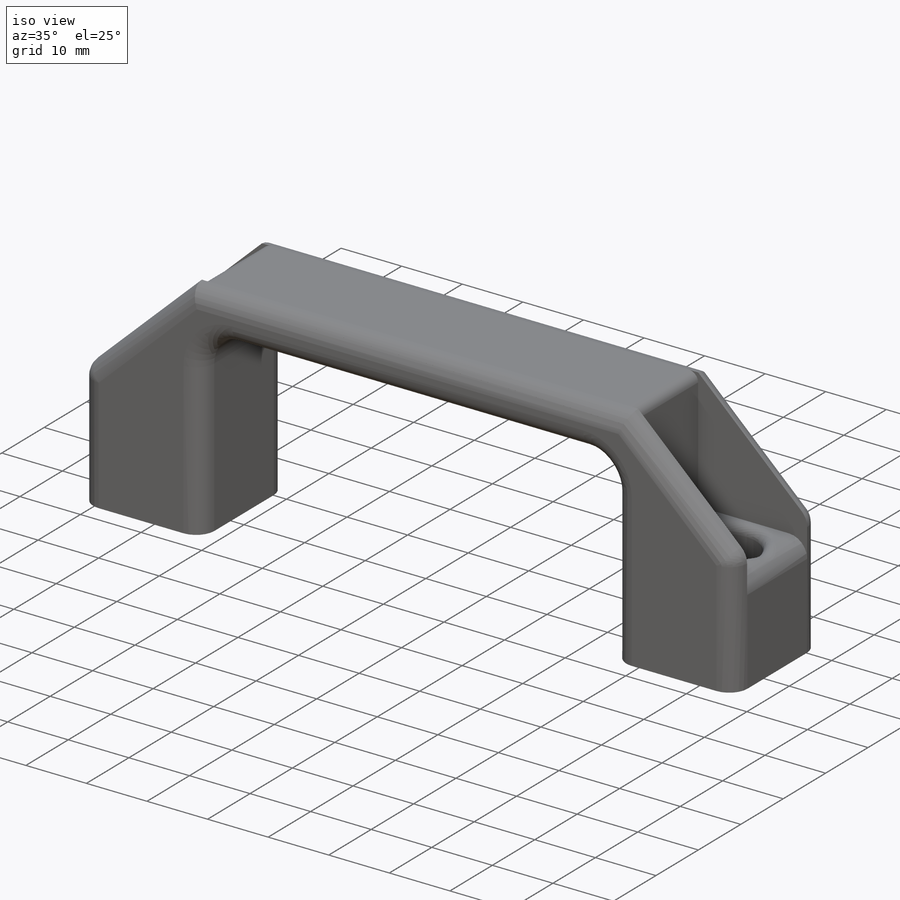
[diagram: iso view]
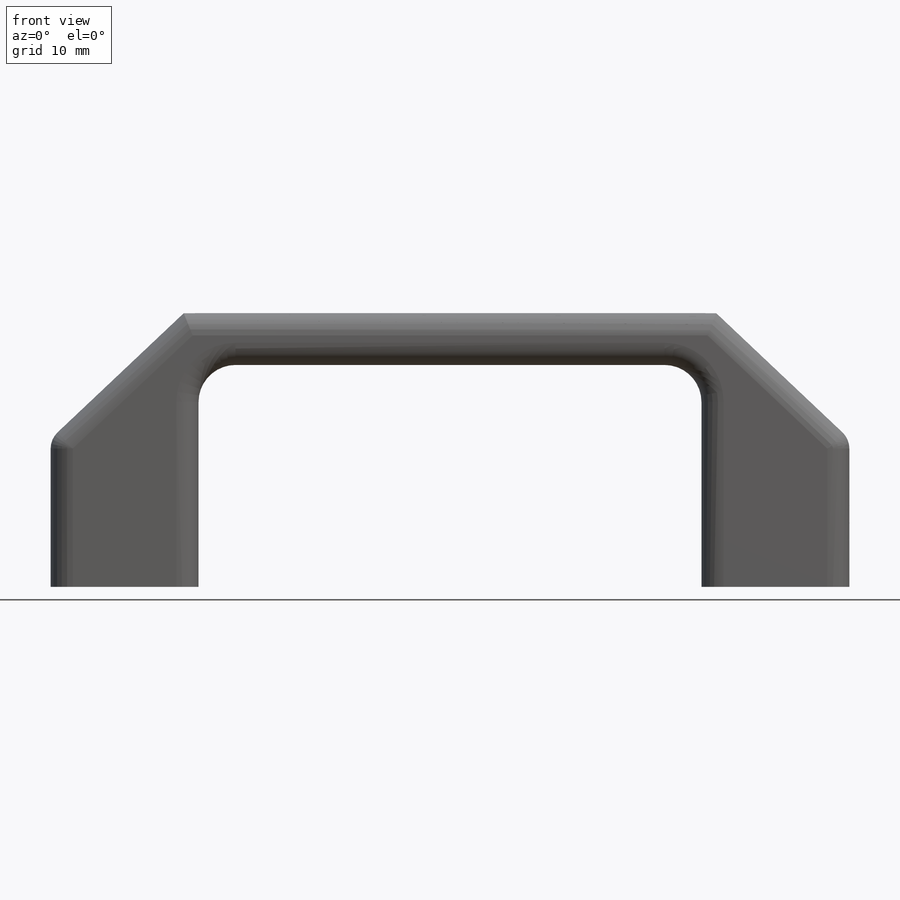
[diagram: front view]
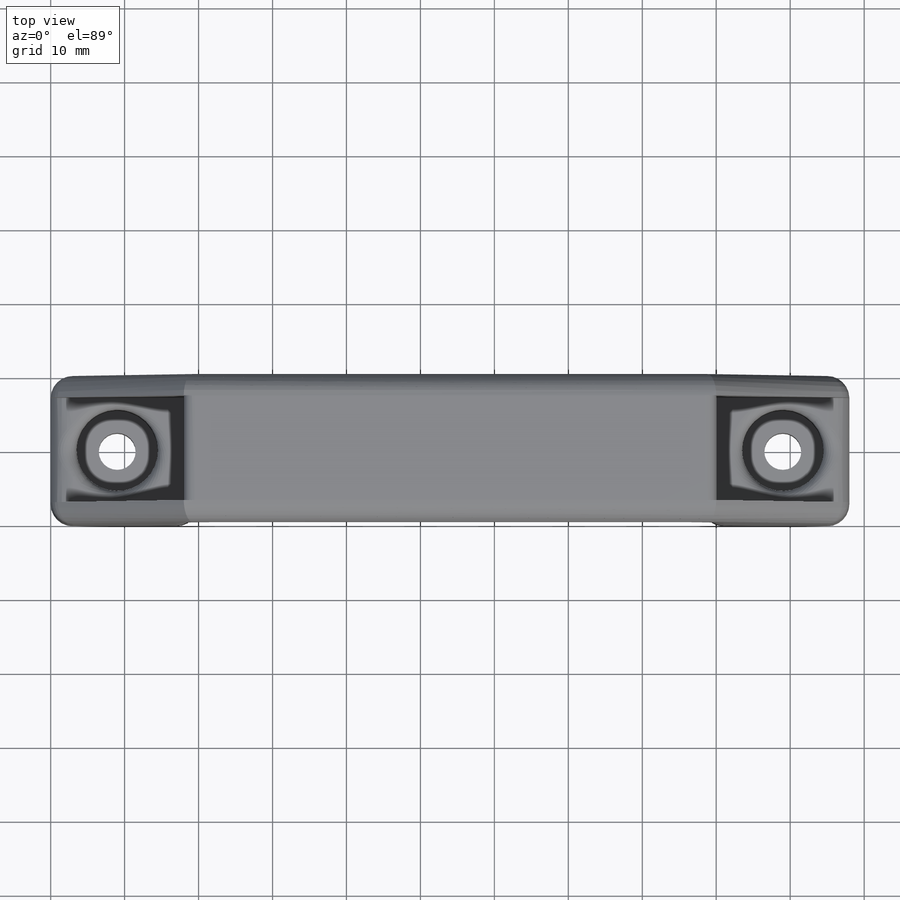
[diagram: top view]
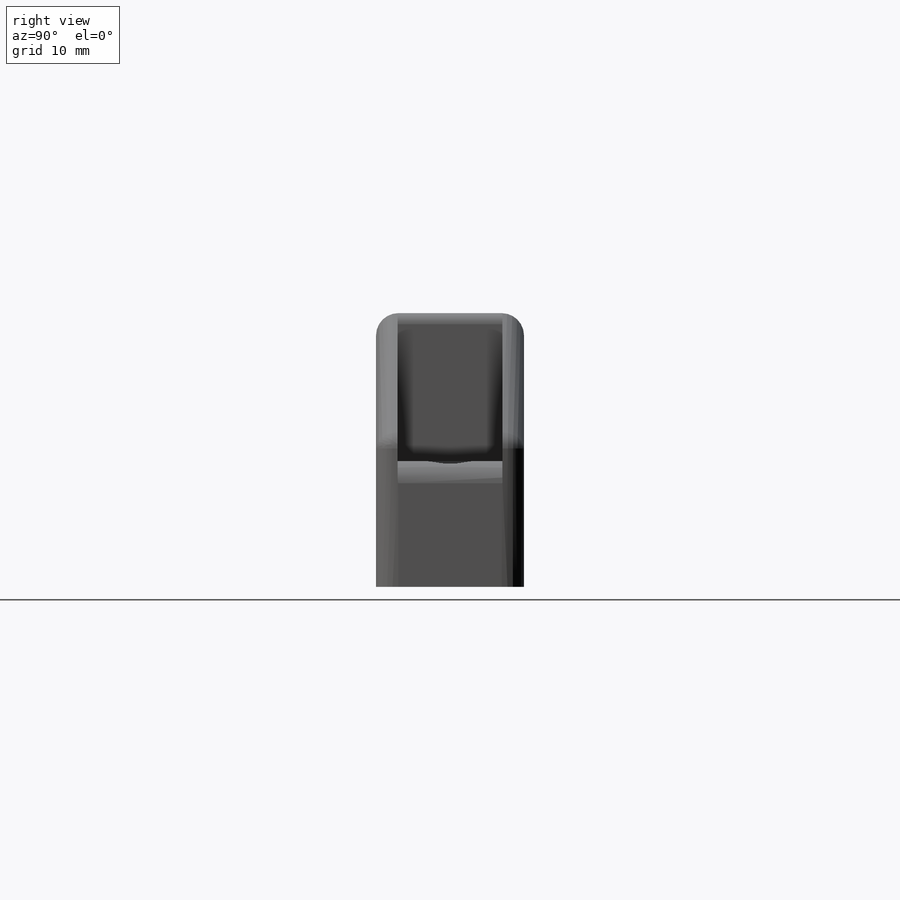
[diagram: right view]
SOLIDWORKS PART (.sldprt)
format: sldprt  version: not decoded by parser v0  size: 365,568 bytes
history: native  units: mm
features: sketch x6, cut_extrude x5, fillet x4, material x1, extrude x1, plane x1, mirror x1 (+12 scaffold rows collapsed)
feature tree (31):
  scaffold x12  (default folders/planes/origin — collapsed)
  material  "Material <not specified>"
  sketch  "Sketch1"  dims[D1=108.0mm D2=37.0mm]
  extrude  "Boss-Extrude1"  Depth=20mm
  sketch  "Sketch2"  dims[D1=5.0mm D2=45.0mm D3=9.0mm]
  cut_extrude  "Cut-Extrude1"  [1 undecoded]
  sketch  "Sketch3"  dims[D1=18.0mm D2=~14.168626mm]
  cut_extrude  "Cut-Extrude2"  Depth=20mm
  sketch  "Sketch4"  dims[D1=17.0mm D2=18.0mm]
  cut_extrude  "Cut-Extrude3"  Depth=20mm
  sketch  "Sketch5"  dims[D3=5.0mm D1=20.0mm D2=30.0mm]
  cut_extrude  "Cut-Extrude4"  Depth=20mm
  sketch  "Sketch6"  dims[D1=11.0mm]
  cut_extrude  "Cut-Extrude5"  Depth=8mm
  plane  "Plane1"  Offset=54mm
  mirror  "Mirror1"
  fillet  "Fillet1"  Radius=3mm
  fillet  "Fillet2"  Radius=3mm
  fillet  "Fillet3"  Radius=3mm
  fillet  "Fillet4"  Radius=1.5mm
decode coverage: 15 of 17 modeling features carry decoded parameters
note: ~ marks probable driven/reference dimensions
note: 1 parameter value undecoded
note: suppression state not decoded; provenance and decode notes live in map.json
